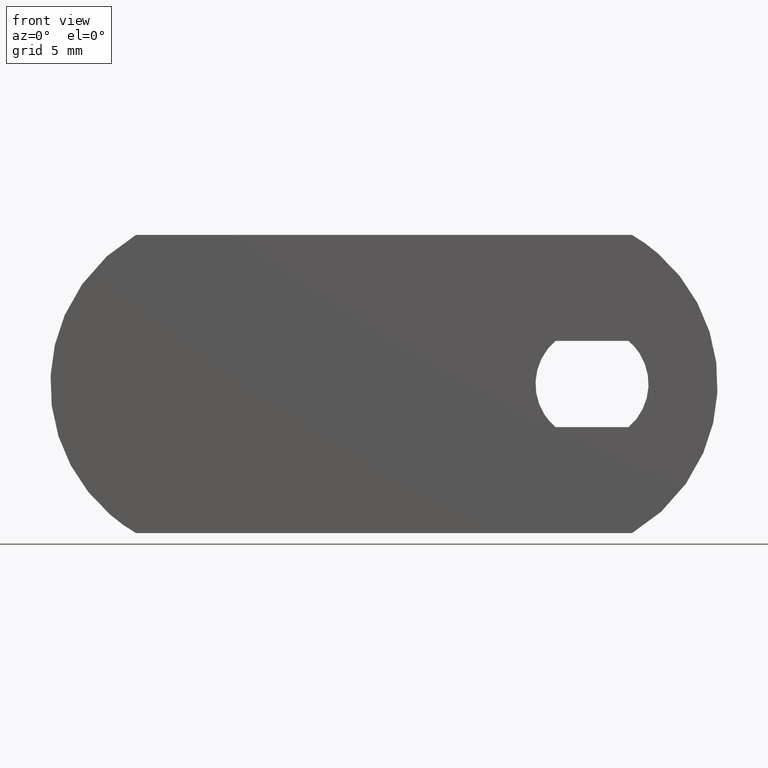
[diagram: clean part render]
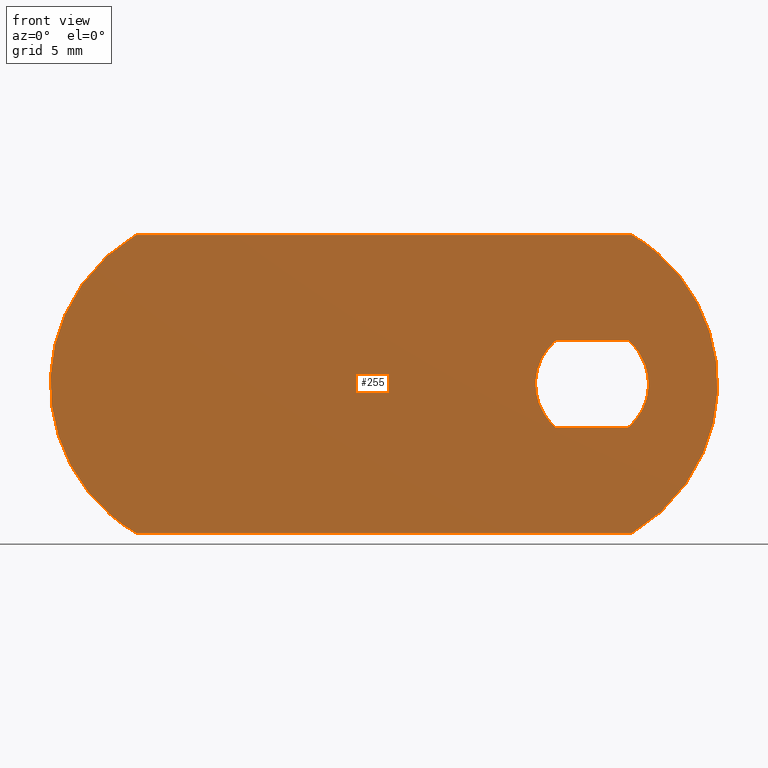
[diagram: same view with one face highlighted and labeled with its STEP entity id]
A machine part, front view. The second image highlights one B-rep face of the part: STEP entity #255.
In plain terms, the highlighted face is a freeform B-spline surface patch.
Its self-contained STEP definition (entity closure, byte-faithful):
#150=CARTESIAN_POINT('',(-36.622874917626753,-2.300000000000095,10.449049963174311));
#151=CARTESIAN_POINT('',(10.122876057565581,-2.300000000000095,10.449049963174311));
#152=CARTESIAN_POINT('',(-36.622874917626753,-2.300000000000095,-10.449050472794029));
#153=CARTESIAN_POINT('',(10.122876057565581,-2.300000000000095,-10.449050472794029));
#154=B_SPLINE_SURFACE_WITH_KNOTS('',1,1,((#150,#152),(#151,#153)),.UNSPECIFIED.,.F.,.F.,.U.,(2,2),(2,2),(0.0,46.745750975192337),(0.0,20.898100435968342),.UNSPECIFIED.);
#155=CARTESIAN_POINT('',(-29.045268253204700,-2.300000000000080,9.500000000000000));
#156=VERTEX_POINT('',#155);
#157=CARTESIAN_POINT('',(2.545268253204700,-2.300000000000080,9.500000000000000));
#158=VERTEX_POINT('',#157);
#159=CARTESIAN_POINT('',(-29.045268253204700,-2.300000000000080,9.500000000000000));
#160=CARTESIAN_POINT('',(2.545268253204700,-2.300000000000080,9.500000000000000));
#161=QUASI_UNIFORM_CURVE('',1,(#159,#160),.UNSPECIFIED.,.F.,.U.);
#162=EDGE_CURVE('',#156,#158,#161,.T.);
#163=ORIENTED_EDGE('',*,*,#162,.F.);
#164=CARTESIAN_POINT('',(-29.045268253204700,-2.300000000000080,-9.500000000000000));
#165=VERTEX_POINT('',#164);
#166=CARTESIAN_POINT('',(-29.045268253204700,-2.300000000000080,9.500000000000005));
#167=CARTESIAN_POINT('',(-34.500000000000000,-2.300000000000080,6.316005180499818));
#168=CARTESIAN_POINT('',(-34.500000000000000,-2.300000000000080,0.0));
#169=CARTESIAN_POINT('',(-34.500000000000000,-2.300000000000080,-6.316005180499817));
#170=CARTESIAN_POINT('',(-29.045268253204700,-2.300000000000080,-9.500000000000004));
#178=(BOUNDED_CURVE()B_SPLINE_CURVE(2,(#166,#167,#168,#169,#170),.UNSPECIFIED.,.F.,.U.)B_SPLINE_CURVE_WITH_KNOTS((3,2,3),(0.0,0.500000000000000,1.0),.UNSPECIFIED.)CURVE()GEOMETRIC_REPRESENTATION_ITEM()RATIONAL_B_SPLINE_CURVE((1.0,0.867212573636326,1.0,0.867212573636326,1.0))REPRESENTATION_ITEM(''));
#179=EDGE_CURVE('',#156,#165,#178,.T.);
#180=ORIENTED_EDGE('',*,*,#179,.T.);
#181=CARTESIAN_POINT('',(2.545268253204700,-2.300000000000080,-9.500000000000000));
#182=VERTEX_POINT('',#181);
#183=CARTESIAN_POINT('',(2.545268253204700,-2.300000000000080,-9.500000000000000));
#184=CARTESIAN_POINT('',(-29.045268253204700,-2.300000000000080,-9.500000000000000));
#185=QUASI_UNIFORM_CURVE('',1,(#183,#184),.UNSPECIFIED.,.F.,.U.);
#186=EDGE_CURVE('',#182,#165,#185,.T.);
#187=ORIENTED_EDGE('',*,*,#186,.F.);
#188=CARTESIAN_POINT('',(2.545268253204699,-2.300000000000080,-9.500000000000005));
#189=CARTESIAN_POINT('',(8.0,-2.300000000000080,-6.316005180499818));
#190=CARTESIAN_POINT('',(8.0,-2.300000000000080,0.0));
#191=CARTESIAN_POINT('',(8.0,-2.300000000000080,6.316005180499816));
#192=CARTESIAN_POINT('',(2.545268253204703,-2.300000000000080,9.500000000000004));
#200=(BOUNDED_CURVE()B_SPLINE_CURVE(2,(#188,#189,#190,#191,#192),.UNSPECIFIED.,.F.,.U.)B_SPLINE_CURVE_WITH_KNOTS((3,2,3),(0.0,0.500000000000000,1.0),.UNSPECIFIED.)CURVE()GEOMETRIC_REPRESENTATION_ITEM()RATIONAL_B_SPLINE_CURVE((1.0,0.867212573636326,1.0,0.867212573636326,1.0))REPRESENTATION_ITEM(''));
#201=EDGE_CURVE('',#182,#158,#200,.T.);
#202=ORIENTED_EDGE('',*,*,#201,.T.);
#203=EDGE_LOOP('',(#163,#180,#187,#202));
#204=FACE_OUTER_BOUND('',#203,.T.);
#205=CARTESIAN_POINT('',(-2.323252031097790,-2.300000000000080,2.750000000000000));
#206=VERTEX_POINT('',#205);
#207=CARTESIAN_POINT('',(2.323252031097790,-2.300000000000080,2.750000000000000));
#208=VERTEX_POINT('',#207);
#209=CARTESIAN_POINT('',(-2.323252031097790,-2.300000000000080,2.750000000000000));
#210=CARTESIAN_POINT('',(2.323252031097790,-2.300000000000080,2.750000000000000));
#211=QUASI_UNIFORM_CURVE('',1,(#209,#210),.UNSPECIFIED.,.F.,.U.);
#212=EDGE_CURVE('',#206,#208,#211,.T.);
#213=ORIENTED_EDGE('',*,*,#212,.T.);
#214=CARTESIAN_POINT('',(2.323252031097790,-2.300000000000080,-2.750000000000000));
#215=VERTEX_POINT('',#214);
#216=CARTESIAN_POINT('',(2.323252031097788,-2.300000000000080,-2.750000000000000));
#217=CARTESIAN_POINT('',(3.600000000000001,-2.300000000000080,-1.671379159290167));
#218=CARTESIAN_POINT('',(3.600000000000000,-2.300000000000080,0.0));
#219=CARTESIAN_POINT('',(3.600000000000001,-2.300000000000080,1.671379159290165));
#220=CARTESIAN_POINT('',(2.323252031097791,-2.300000000000080,2.749999999999998));
#228=(BOUNDED_CURVE()B_SPLINE_CURVE(2,(#216,#217,#218,#219,#220),.UNSPECIFIED.,.F.,.U.)B_SPLINE_CURVE_WITH_KNOTS((3,2,3),(0.0,0.500000000000000,1.0),.UNSPECIFIED.)CURVE()GEOMETRIC_REPRESENTATION_ITEM()RATIONAL_B_SPLINE_CURVE((1.0,0.907013722723105,1.0,0.907013722723105,1.0))REPRESENTATION_ITEM(''));
#229=EDGE_CURVE('',#215,#208,#228,.T.);
#230=ORIENTED_EDGE('',*,*,#229,.F.);
#231=CARTESIAN_POINT('',(-2.323252031097790,-2.300000000000080,-2.750000000000000));
#232=VERTEX_POINT('',#231);
#233=CARTESIAN_POINT('',(2.323252031097790,-2.300000000000080,-2.750000000000000));
#234=CARTESIAN_POINT('',(-2.323252031097790,-2.300000000000080,-2.750000000000000));
#235=QUASI_UNIFORM_CURVE('',1,(#233,#234),.UNSPECIFIED.,.F.,.U.);
#236=EDGE_CURVE('',#215,#232,#235,.T.);
#237=ORIENTED_EDGE('',*,*,#236,.T.);
#238=CARTESIAN_POINT('',(-2.323252031097790,-2.300000000000080,2.749999999999999));
#239=CARTESIAN_POINT('',(-3.600000000000001,-2.300000000000080,1.671379159290166));
#240=CARTESIAN_POINT('',(-3.600000000000000,-2.300000000000080,0.0));
#241=CARTESIAN_POINT('',(-3.600000000000001,-2.300000000000080,-1.671379159290167));
#242=CARTESIAN_POINT('',(-2.323252031097789,-2.300000000000080,-2.750000000000000));
#250=(BOUNDED_CURVE()B_SPLINE_CURVE(2,(#238,#239,#240,#241,#242),.UNSPECIFIED.,.F.,.U.)B_SPLINE_CURVE_WITH_KNOTS((3,2,3),(0.0,0.500000000000000,1.0),.UNSPECIFIED.)CURVE()GEOMETRIC_REPRESENTATION_ITEM()RATIONAL_B_SPLINE_CURVE((1.0,0.907013722723105,1.0,0.907013722723105,1.0))REPRESENTATION_ITEM(''));
#251=EDGE_CURVE('',#206,#232,#250,.T.);
#252=ORIENTED_EDGE('',*,*,#251,.F.);
#253=EDGE_LOOP('',(#213,#230,#237,#252));
#254=FACE_BOUND('',#253,.T.);
#255=ADVANCED_FACE('',(#204,#254),#154,.F.);